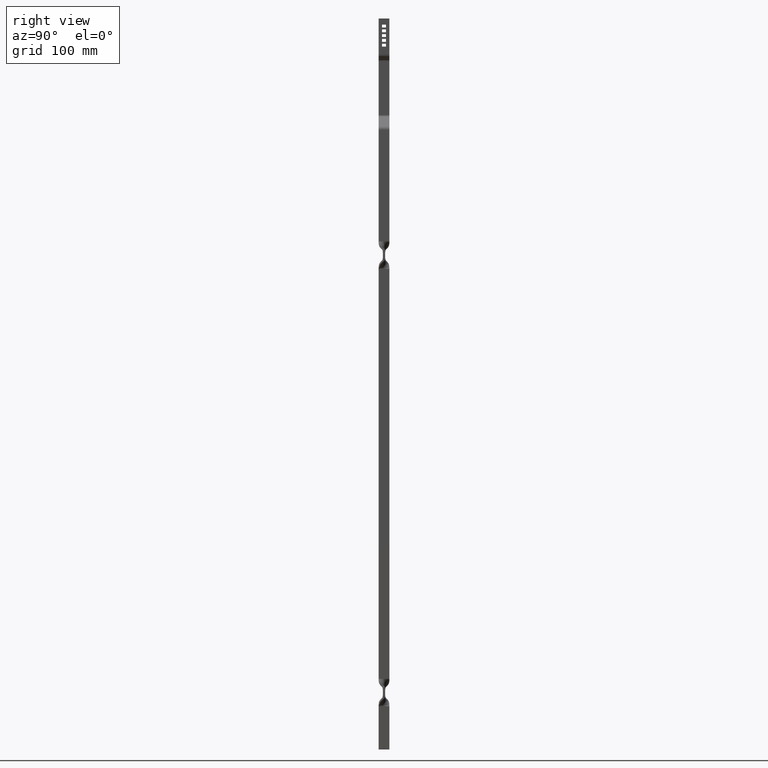
[diagram: clean part render]
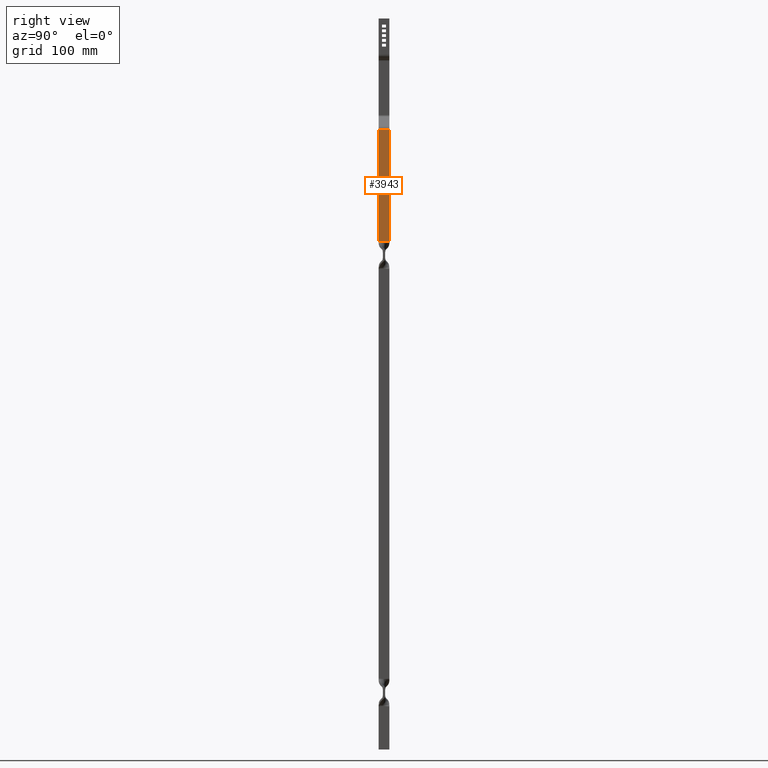
[diagram: same view with one face highlighted and labeled with its STEP entity id]
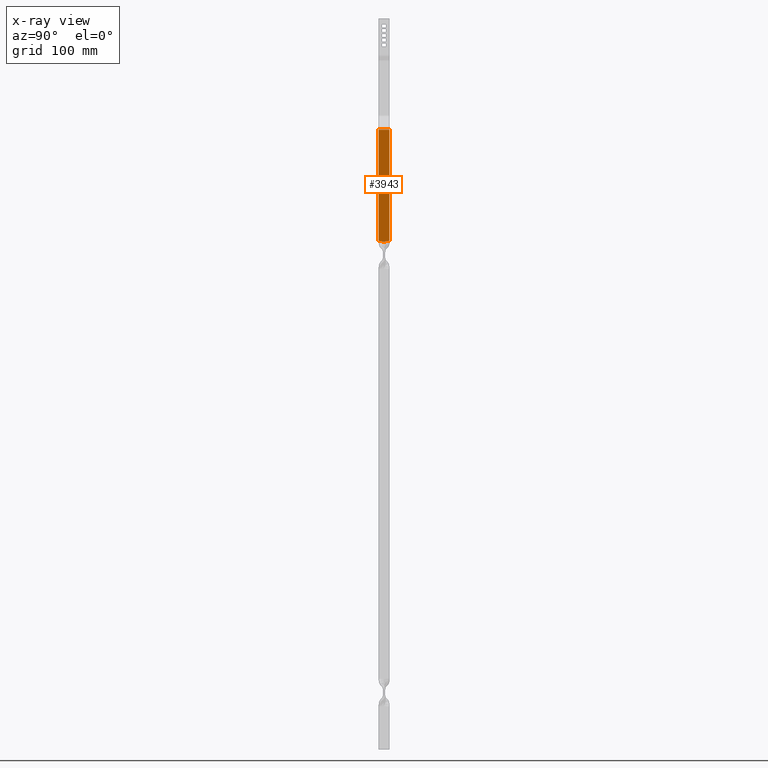
[diagram: x-ray of the same camera — body ghosted, the highlighted face saturated]
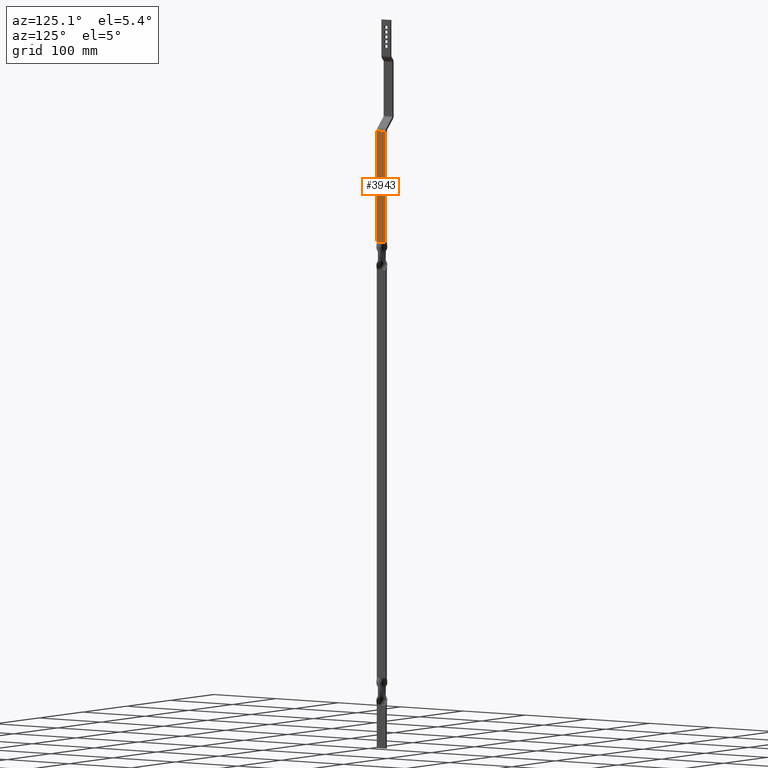
[diagram: same view with one face highlighted and labeled with its STEP entity id]
A machine part, right view. The second image highlights one B-rep face of the part: STEP entity #3943.
The next image is the same camera in x-ray: the body ghosted, the highlighted face saturated — about 0% of this face is hidden behind the body in this view.
A second angle (auxiliary view) of the same face is appended — the face is thin or edge-on in the first view.
In plain terms, the highlighted face is a freeform B-spline surface patch.
Its self-contained STEP definition (entity closure, byte-faithful):
#919=CARTESIAN_POINT('',(13.499999999999559,-0.271775746040426,-283.499999999965500));
#920=VERTEX_POINT('',#919);
#921=CARTESIAN_POINT('',(13.499999999999581,7.0,-282.289823195496980));
#922=VERTEX_POINT('',#921);
#923=CARTESIAN_POINT('',(13.499999999999559,-0.271775746040426,-283.499999999965500));
#924=CARTESIAN_POINT('',(13.499999999999631,0.331125423668914,-283.381840459167220));
#925=CARTESIAN_POINT('',(13.499999999999581,0.934187228391814,-283.262608892210210));
#926=CARTESIAN_POINT('',(13.499999999999581,2.141573673938032,-283.032512668296480));
#927=CARTESIAN_POINT('',(13.499999999999559,2.746067614053487,-282.921779648599280));
#928=CARTESIAN_POINT('',(13.499999999999559,3.957689163754447,-282.715155313479730));
#929=CARTESIAN_POINT('',(13.499999999999520,4.564574697635016,-282.619239176056910));
#930=CARTESIAN_POINT('',(13.499999999999520,5.780642736340888,-282.443213668919500));
#931=CARTESIAN_POINT('',(13.499999999999581,6.389812878324864,-282.363019223439720));
#932=CARTESIAN_POINT('',(13.499999999999581,7.0,-282.289823195496980));
#933=B_SPLINE_CURVE_WITH_KNOTS('',3,(#923,#924,#925,#926,#927,#928,#929,#930,#931,#932),.UNSPECIFIED.,.F.,.U.,(4,2,2,2,4),(0.0,0.250000000000000,0.500000000000000,0.750000000000000,1.0),.UNSPECIFIED.);
#934=EDGE_CURVE('',#920,#922,#933,.T.);
#1069=CARTESIAN_POINT('',(13.499999999999581,-7.0,-282.313138851908490));
#1070=VERTEX_POINT('',#1069);
#1071=CARTESIAN_POINT('',(13.499999999999581,-7.0,-282.313138851908490));
#1072=CARTESIAN_POINT('',(13.499999999999581,-6.434663200718023,-282.383037043920010));
#1073=CARTESIAN_POINT('',(13.499999999999551,-5.870319582463785,-282.459521504054580));
#1074=CARTESIAN_POINT('',(13.499999999999559,-4.743986133301747,-282.628099537000480));
#1075=CARTESIAN_POINT('',(13.499999999999570,-4.182009287865928,-282.720279222813820));
#1076=CARTESIAN_POINT('',(13.499999999999581,-3.060560236042528,-282.921248078374790));
#1077=CARTESIAN_POINT('',(13.499999999999650,-2.501421362214996,-283.030178084114480));
#1078=CARTESIAN_POINT('',(13.499999999999650,-1.385487364081157,-283.259859970403110));
#1079=CARTESIAN_POINT('',(13.499999999999510,-0.828537849742453,-283.380513746795710));
#1080=CARTESIAN_POINT('',(13.499999999999559,-0.271775746040426,-283.499999999965500));
#1081=B_SPLINE_CURVE_WITH_KNOTS('',3,(#1071,#1072,#1073,#1074,#1075,#1076,#1077,#1078,#1079,#1080),.UNSPECIFIED.,.F.,.U.,(4,2,2,2,4),(0.0,0.250000000000000,0.500000000000000,0.750000000000000,1.0),.UNSPECIFIED.);
#1082=EDGE_CURVE('',#1070,#920,#1081,.T.);
#1750=CARTESIAN_POINT('',(13.500000000000821,-7.0,-136.227922061358210));
#1751=VERTEX_POINT('',#1750);
#1767=CARTESIAN_POINT('',(13.500000000000821,7.0,-136.227922061358210));
#1768=VERTEX_POINT('',#1767);
#1769=CARTESIAN_POINT('',(13.500000000000821,7.0,-136.227922061358210));
#1770=CARTESIAN_POINT('',(13.500000000000821,-7.0,-136.227922061358210));
#1771=QUASI_UNIFORM_CURVE('',1,(#1769,#1770),.UNSPECIFIED.,.F.,.U.);
#1772=EDGE_CURVE('',#1768,#1751,#1771,.T.);
#3675=CARTESIAN_POINT('',(13.499999999999581,7.0,-282.289823195496980));
#3676=CARTESIAN_POINT('',(13.500000000000821,7.0,-136.227922061358210));
#3677=QUASI_UNIFORM_CURVE('',1,(#3675,#3676),.UNSPECIFIED.,.F.,.U.);
#3678=EDGE_CURVE('',#922,#1768,#3677,.T.);
#3761=CARTESIAN_POINT('',(13.499999999999581,-7.0,-282.313138851908490));
#3762=CARTESIAN_POINT('',(13.500000000000821,-7.0,-136.227922061358210));
#3763=QUASI_UNIFORM_CURVE('',1,(#3761,#3762),.UNSPECIFIED.,.F.,.U.);
#3764=EDGE_CURVE('',#1070,#1751,#3763,.T.);
#3931=CARTESIAN_POINT('',(13.499999999999559,-7.699299972865286,-290.856240007557120));
#3932=CARTESIAN_POINT('',(13.499999999999559,-7.699299972865286,-128.871678103621690));
#3933=CARTESIAN_POINT('',(13.499999999999559,7.699300348374547,-290.856240007557120));
#3934=CARTESIAN_POINT('',(13.499999999999559,7.699300348374547,-128.871678103621690));
#3935=B_SPLINE_SURFACE_WITH_KNOTS('',1,1,((#3931,#3933),(#3932,#3934)),.UNSPECIFIED.,.F.,.F.,.U.,(2,2),(2,2),(0.0,161.984561903935400),(0.0,15.398600321239829),.UNSPECIFIED.);
#3936=ORIENTED_EDGE('',*,*,#3764,.F.);
#3937=ORIENTED_EDGE('',*,*,#1082,.T.);
#3938=ORIENTED_EDGE('',*,*,#934,.T.);
#3939=ORIENTED_EDGE('',*,*,#3678,.T.);
#3940=ORIENTED_EDGE('',*,*,#1772,.T.);
#3941=EDGE_LOOP('',(#3936,#3937,#3938,#3939,#3940));
#3942=FACE_OUTER_BOUND('',#3941,.T.);
#3943=ADVANCED_FACE('',(#3942),#3935,.F.);